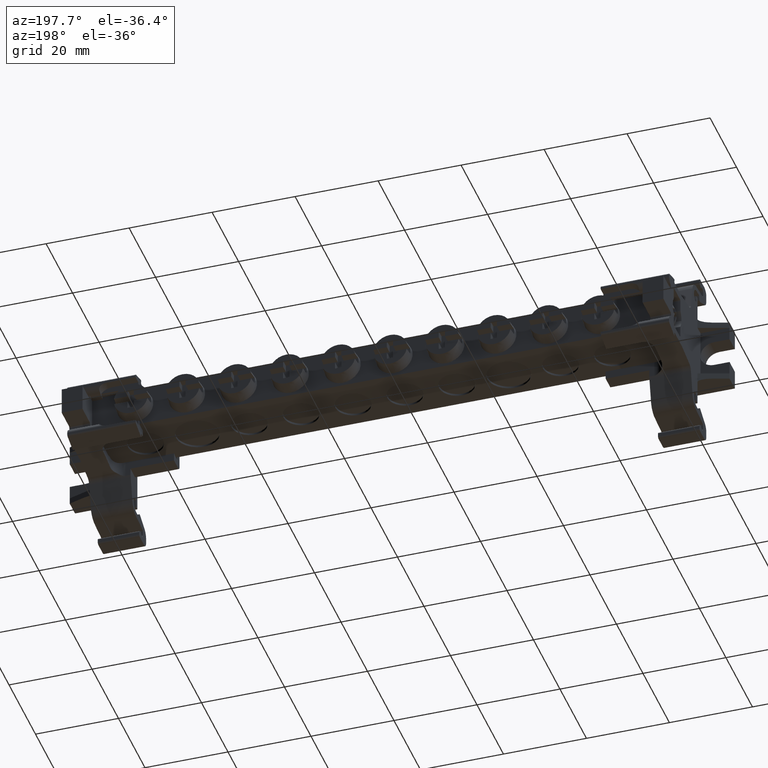
[diagram: clean part render]
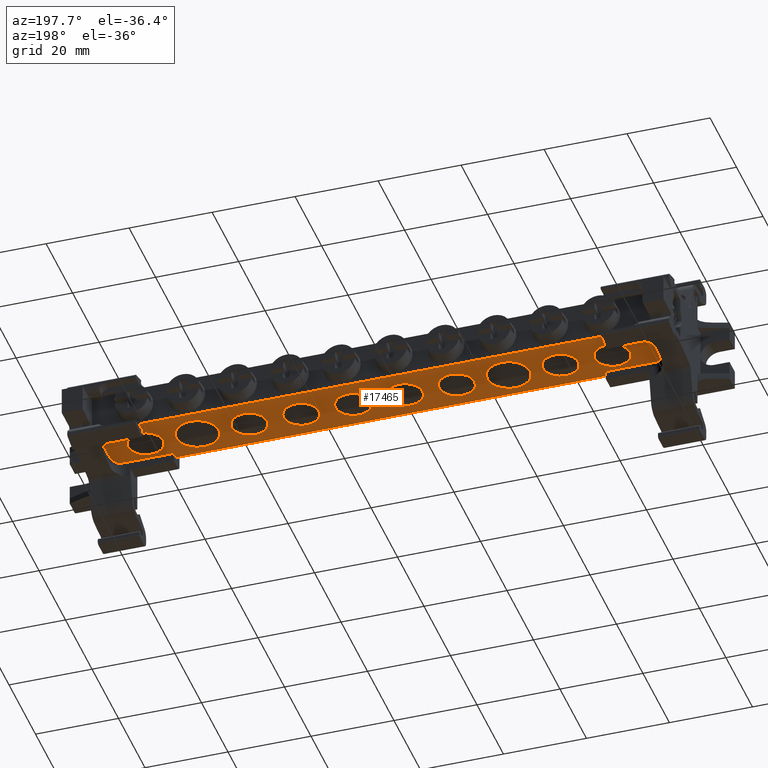
[diagram: same view with one face highlighted and labeled with its STEP entity id]
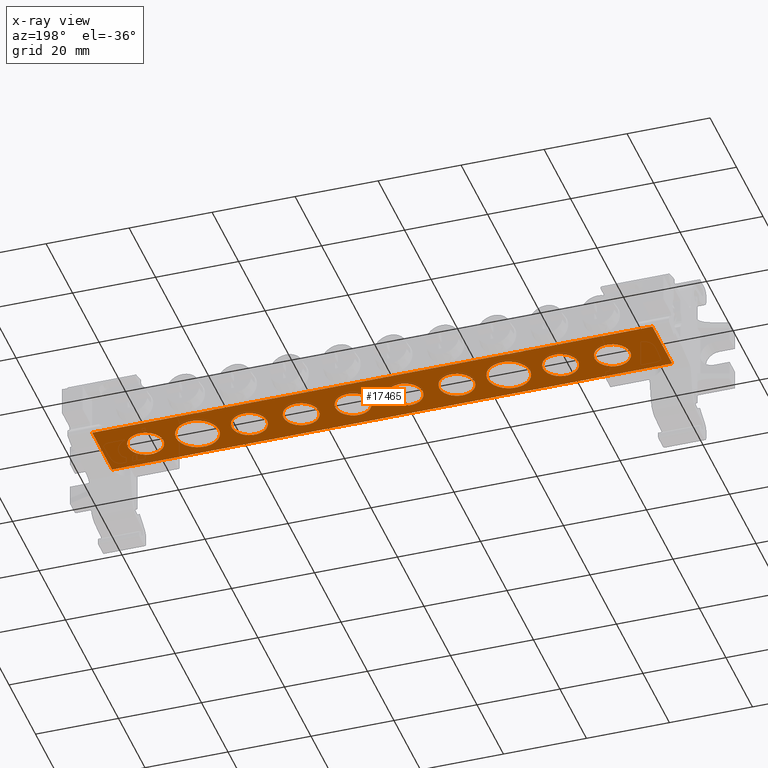
[diagram: x-ray of the same camera — body ghosted, the highlighted face saturated]
A machine part, auxiliary view. The second image highlights one B-rep face of the part: STEP entity #17465.
The next image is the same camera in x-ray: the body ghosted, the highlighted face saturated — about 0% of this face is hidden behind the body in this view.
In plain terms, the highlighted planar face has unit normal (0, 0, -1).
Its self-contained STEP definition (entity closure, byte-faithful):
#525 = DIRECTION ( 'NONE',  ( -0.0000000000000000000, -1.000000000000000000, -0.0000000000000000000 ) ) ;
#541 = CARTESIAN_POINT ( 'NONE',  ( 40.04730230417570200, 62.41882648292838800, 33.07764998369308500 ) ) ;
#555 = LINE ( 'NONE', #541, #10914 ) ;
#582 = CARTESIAN_POINT ( 'NONE',  ( -7.852697695824407000, 54.61882648292838400, 33.07764998369308500 ) ) ;
#583 = DIRECTION ( 'NONE',  ( 1.000000000000000000, 0.0000000000000000000, 0.0000000000000000000 ) ) ;
#587 = DIRECTION ( 'NONE',  ( 0.0000000000000000000, 0.0000000000000000000, 1.000000000000000000 ) ) ;
#620 = DIRECTION ( 'NONE',  ( -1.000000000000000000, 0.0000000000000000000, -0.0000000000000000000 ) ) ;
#626 = CARTESIAN_POINT ( 'NONE',  ( -56.95269769582441200, 47.41882648293140100, 33.07764998369308500 ) ) ;
#641 = LINE ( 'NONE', #626, #10921 ) ;
#652 = DIRECTION ( 'NONE',  ( 0.0000000000000000000, 0.0000000000000000000, 1.000000000000000000 ) ) ;
#654 = DIRECTION ( 'NONE',  ( 0.0000000000000000000, 0.0000000000000000000, 1.000000000000000000 ) ) ;
#656 = DIRECTION ( 'NONE',  ( 1.000000000000000000, 0.0000000000000000000, 0.0000000000000000000 ) ) ;
#657 = DIRECTION ( 'NONE',  ( 1.000000000000000000, 0.0000000000000000000, 0.0000000000000000000 ) ) ;
#660 = CARTESIAN_POINT ( 'NONE',  ( -20.35269769582440700, 54.61882648292838400, 33.07764998369308500 ) ) ;
#688 = CARTESIAN_POINT ( 'NONE',  ( 17.14730230417558900, 54.61882648292838400, 33.07764998369308500 ) ) ;
#712 = CARTESIAN_POINT ( 'NONE',  ( -82.85269769582440300, 54.61882648292838400, 33.07764998369308500 ) ) ;
#713 = DIRECTION ( 'NONE',  ( 0.0000000000000000000, 0.0000000000000000000, 1.000000000000000000 ) ) ;
#714 = DIRECTION ( 'NONE',  ( 1.000000000000000000, 0.0000000000000000000, 0.0000000000000000000 ) ) ;
#734 = DIRECTION ( 'NONE',  ( 1.000000000000000000, 0.0000000000000000000, 0.0000000000000000000 ) ) ;
#770 = CARTESIAN_POINT ( 'NONE',  ( -57.85269769582440300, 54.61882648292838400, 33.07764998369308500 ) ) ;
#771 = DIRECTION ( 'NONE',  ( 0.0000000000000000000, 0.0000000000000000000, 1.000000000000000000 ) ) ;
#773 = DIRECTION ( 'NONE',  ( 1.000000000000000000, 0.0000000000000000000, 0.0000000000000000000 ) ) ;
#776 = CARTESIAN_POINT ( 'NONE',  ( 4.647302304175593000, 54.61882648292838400, 33.07764998369308500 ) ) ;
#777 = DIRECTION ( 'NONE',  ( 0.0000000000000000000, 0.0000000000000000000, 1.000000000000000000 ) ) ;
#825 = DIRECTION ( 'NONE',  ( -1.000000000000000000, 0.0000000000000000000, -0.0000000000000000000 ) ) ;
#832 = LINE ( 'NONE', #853, #11047 ) ;
#844 = DIRECTION ( 'NONE',  ( 0.0000000000000000000, 0.0000000000000000000, 1.000000000000000000 ) ) ;
#845 = CARTESIAN_POINT ( 'NONE',  ( -32.85269769582441100, 54.61882648292838400, 33.07764998369308500 ) ) ;
#851 = DIRECTION ( 'NONE',  ( 1.000000000000000000, 0.0000000000000000000, 0.0000000000000000000 ) ) ;
#853 = CARTESIAN_POINT ( 'NONE',  ( -56.95269769582441200, 47.41882648293162100, 33.07764998369308500 ) ) ;
#873 = LINE ( 'NONE', #906, #11067 ) ;
#876 = DIRECTION ( 'NONE',  ( 1.000000000000000000, 0.0000000000000000000, 0.0000000000000000000 ) ) ;
#879 = DIRECTION ( 'NONE',  ( 1.000000000000000000, 0.0000000000000000000, 0.0000000000000000000 ) ) ;
#881 = DIRECTION ( 'NONE',  ( 0.0000000000000000000, 0.0000000000000000000, 1.000000000000000000 ) ) ;
#883 = DIRECTION ( 'NONE',  ( 0.0000000000000000000, 0.0000000000000000000, 1.000000000000000000 ) ) ;
#899 = DIRECTION ( 'NONE',  ( -0.0000000000000000000, -1.000000000000000000, -0.0000000000000000000 ) ) ;
#902 = CARTESIAN_POINT ( 'NONE',  ( -70.35269769582441800, 54.61882648292838400, 33.07764998369308500 ) ) ;
#905 = CARTESIAN_POINT ( 'NONE',  ( -45.35269769582441100, 54.61882648292838400, 33.07764998369308500 ) ) ;
#906 = CARTESIAN_POINT ( 'NONE',  ( 40.04730230417567300, 62.41882648292838800, 33.07764998369308500 ) ) ;
#913 = CARTESIAN_POINT ( 'NONE',  ( 29.64730230417559700, 54.61882648292838400, 33.07764998369308500 ) ) ;
#918 = DIRECTION ( 'NONE',  ( 0.0000000000000000000, 0.0000000000000000000, 1.000000000000000000 ) ) ;
#932 = DIRECTION ( 'NONE',  ( 1.000000000000000000, 0.0000000000000000000, 0.0000000000000000000 ) ) ;
#995 = LINE ( 'NONE', #1023, #10865 ) ;
#1004 = DIRECTION ( 'NONE',  ( 7.897574987183420400E-015, 1.000000000000000000, -0.0000000000000000000 ) ) ;
#1023 = CARTESIAN_POINT ( 'NONE',  ( 40.04730230417604300, 70.57882648293222900, 33.07764998369308500 ) ) ;
#2025 = VERTEX_POINT ( 'NONE', #4806 ) ;
#2032 = VERTEX_POINT ( 'NONE', #4838 ) ;
#2042 = VERTEX_POINT ( 'NONE', #4802 ) ;
#2043 = VERTEX_POINT ( 'NONE', #4877 ) ;
#2056 = VERTEX_POINT ( 'NONE', #4850 ) ;
#2076 = VERTEX_POINT ( 'NONE', #4901 ) ;
#2100 = VERTEX_POINT ( 'NONE', #4863 ) ;
#2122 = VERTEX_POINT ( 'NONE', #4841 ) ;
#2137 = VERTEX_POINT ( 'NONE', #4900 ) ;
#2140 = VERTEX_POINT ( 'NONE', #4861 ) ;
#2146 = VERTEX_POINT ( 'NONE', #4851 ) ;
#2151 = VERTEX_POINT ( 'NONE', #4869 ) ;
#2173 = VERTEX_POINT ( 'NONE', #4888 ) ;
#2175 = VERTEX_POINT ( 'NONE', #4882 ) ;
#2181 = VERTEX_POINT ( 'NONE', #4866 ) ;
#2199 = VERTEX_POINT ( 'NONE', #4843 ) ;
#2205 = VERTEX_POINT ( 'NONE', #4894 ) ;
#2229 = VERTEX_POINT ( 'NONE', #4957 ) ;
#2231 = VERTEX_POINT ( 'NONE', #4920 ) ;
#2239 = VERTEX_POINT ( 'NONE', #4960 ) ;
#4030 = CARTESIAN_POINT ( 'NONE',  ( 40.04730230417598600, 62.41882648292838800, 33.07764998369308500 ) ) ;
#4034 = CARTESIAN_POINT ( 'NONE',  ( -94.95269769582414200, 62.41882648292838800, 33.07764998369308500 ) ) ;
#4073 = CARTESIAN_POINT ( 'NONE',  ( 32.14730230417600900, 47.41882648293010800, 33.07764998369310000 ) ) ;
#4079 = CARTESIAN_POINT ( 'NONE',  ( -94.95269769582407100, 47.41882648293165700, 33.07764998369308500 ) ) ;
#4386 = EDGE_LOOP ( 'NONE', ( #13045, #13058 ) ) ;
#4405 = EDGE_LOOP ( 'NONE', ( #13079, #13040 ) ) ;
#4460 = EDGE_LOOP ( 'NONE', ( #13028, #13021, #12981, #13005, #13061, #13050, #13069, #13051, #13002, #13147 ) ) ;
#4802 = CARTESIAN_POINT ( 'NONE',  ( -49.60269769582441100, 54.61882648292838400, 33.07764998369308500 ) ) ;
#4806 = CARTESIAN_POINT ( 'NONE',  ( -37.10269769582441800, 54.61882648292838400, 33.07764998369308500 ) ) ;
#4838 = CARTESIAN_POINT ( 'NONE',  ( 33.89730230417558900, 54.61882648292838400, 33.07764998369308500 ) ) ;
#4841 = CARTESIAN_POINT ( 'NONE',  ( -41.10269769582440300, 54.61882648292838400, 33.07764998369308500 ) ) ;
#4843 = CARTESIAN_POINT ( 'NONE',  ( -66.10269769582441800, 54.61882648292838400, 33.07764998369308500 ) ) ;
#4850 = CARTESIAN_POINT ( 'NONE',  ( -52.70269769582440500, 54.61882648292838400, 33.07764998369308500 ) ) ;
#4851 = CARTESIAN_POINT ( 'NONE',  ( 25.39730230417559300, 54.61882648292838400, 33.07764998369308500 ) ) ;
#4861 = CARTESIAN_POINT ( 'NONE',  ( -63.00269769582440900, 54.61882648292838400, 33.07764998369308500 ) ) ;
#4863 = CARTESIAN_POINT ( 'NONE',  ( 11.99730230417559600, 54.61882648292838400, 33.07764998369308500 ) ) ;
#4866 = CARTESIAN_POINT ( 'NONE',  ( -78.60269769582440300, 54.61882648292838400, 33.07764998369308500 ) ) ;
#4869 = CARTESIAN_POINT ( 'NONE',  ( -12.10269769582441400, 54.61882648292838400, 33.07764998369308500 ) ) ;
#4877 = CARTESIAN_POINT ( 'NONE',  ( -16.10269769582440000, 54.61882648292838400, 33.07764998369308500 ) ) ;
#4882 = CARTESIAN_POINT ( 'NONE',  ( -28.60269769582440300, 54.61882648292838400, 33.07764998369308500 ) ) ;
#4888 = CARTESIAN_POINT ( 'NONE',  ( -87.10269769582440300, 54.61882648292838400, 33.07764998369308500 ) ) ;
#4894 = CARTESIAN_POINT ( 'NONE',  ( 8.897302304175598300, 54.61882648292838400, 33.07764998369308500 ) ) ;
#4900 = CARTESIAN_POINT ( 'NONE',  ( -3.602697695824400800, 54.61882648292838400, 33.07764998369308500 ) ) ;
#4901 = CARTESIAN_POINT ( 'NONE',  ( -74.60269769582441800, 54.61882648292838400, 33.07764998369308500 ) ) ;
#4920 = CARTESIAN_POINT ( 'NONE',  ( 0.3973023041755879300, 54.61882648292838400, 33.07764998369308500 ) ) ;
#4957 = CARTESIAN_POINT ( 'NONE',  ( 22.29730230417558400, 54.61882648292838400, 33.07764998369308500 ) ) ;
#4960 = CARTESIAN_POINT ( 'NONE',  ( -24.60269769582441400, 54.61882648292838400, 33.07764998369308500 ) ) ;
#5044 = CARTESIAN_POINT ( 'NONE',  ( 40.04730230417585100, 61.91882648292985900, 33.07764998369308500 ) ) ;
#5186 = CARTESIAN_POINT ( 'NONE',  ( -94.95269769582439800, 61.91882648293061900, 33.07764998369308500 ) ) ;
#5212 = CARTESIAN_POINT ( 'NONE',  ( 40.04730230417575100, 56.91882648293277200, 33.07764998369308500 ) ) ;
#5224 = CARTESIAN_POINT ( 'NONE',  ( -94.95269769582427000, 56.91882648293350400, 33.07764998369308500 ) ) ;
#5239 = CARTESIAN_POINT ( 'NONE',  ( 40.04730230417581500, 47.41882648293180600, 33.07764998369310000 ) ) ;
#5267 = CARTESIAN_POINT ( 'NONE',  ( -87.05269769582423600, 47.41882648293109500, 33.07764998369308500 ) ) ;
#6426 = VERTEX_POINT ( 'NONE', #5044 ) ;
#6514 = VERTEX_POINT ( 'NONE', #5186 ) ;
#6527 = VERTEX_POINT ( 'NONE', #5212 ) ;
#6539 = VERTEX_POINT ( 'NONE', #5224 ) ;
#6600 = VERTEX_POINT ( 'NONE', #5239 ) ;
#6622 = VERTEX_POINT ( 'NONE', #5267 ) ;
#6661 = VERTEX_POINT ( 'NONE', #4034 ) ;
#6664 = VERTEX_POINT ( 'NONE', #4079 ) ;
#6666 = VERTEX_POINT ( 'NONE', #4030 ) ;
#6673 = VERTEX_POINT ( 'NONE', #4073 ) ;
#7559 = EDGE_LOOP ( 'NONE', ( #12978, #13092 ) ) ;
#7579 = EDGE_LOOP ( 'NONE', ( #13001, #13085 ) ) ;
#7599 = EDGE_LOOP ( 'NONE', ( #12983, #13099 ) ) ;
#7606 = EDGE_LOOP ( 'NONE', ( #13013, #13024 ) ) ;
#7610 = EDGE_LOOP ( 'NONE', ( #12990, #13000 ) ) ;
#7624 = EDGE_LOOP ( 'NONE', ( #13044, #13084 ) ) ;
#7628 = EDGE_LOOP ( 'NONE', ( #13037, #12991 ) ) ;
#10865 = VECTOR ( 'NONE', #1004, 1000.000000000000000 ) ;
#10899 = CIRCLE ( 'NONE', #10934, 5.149999999999995000 ) ;
#10914 = VECTOR ( 'NONE', #525, 1000.000000000000000 ) ;
#10915 = CIRCLE ( 'NONE', #10916, 4.250000000000007100 ) ;
#10916 = AXIS2_PLACEMENT_3D ( 'NONE', #660, #654, #657 ) ;
#10921 = VECTOR ( 'NONE', #620, 1000.000000000000000 ) ;
#10923 = CIRCLE ( 'NONE', #10937, 4.250000000000006200 ) ;
#10934 = AXIS2_PLACEMENT_3D ( 'NONE', #688, #652, #656 ) ;
#10937 = AXIS2_PLACEMENT_3D ( 'NONE', #582, #587, #583 ) ;
#10971 = CIRCLE ( 'NONE', #10985, 5.150000000000002100 ) ;
#10972 = CIRCLE ( 'NONE', #11015, 4.250000000000003600 ) ;
#10983 = CIRCLE ( 'NONE', #11057, 4.250000000000007100 ) ;
#10985 = AXIS2_PLACEMENT_3D ( 'NONE', #770, #771, #773 ) ;
#10993 = CIRCLE ( 'NONE', #11020, 4.250000000000005300 ) ;
#11015 = AXIS2_PLACEMENT_3D ( 'NONE', #712, #713, #714 ) ;
#11020 = AXIS2_PLACEMENT_3D ( 'NONE', #776, #777, #734 ) ;
#11047 = VECTOR ( 'NONE', #825, 1000.000000000000000 ) ;
#11051 = CIRCLE ( 'NONE', #11076, 4.250000000000003600 ) ;
#11054 = CIRCLE ( 'NONE', #11065, 4.250000000000003600 ) ;
#11057 = AXIS2_PLACEMENT_3D ( 'NONE', #845, #844, #851 ) ;
#11065 = AXIS2_PLACEMENT_3D ( 'NONE', #902, #881, #879 ) ;
#11067 = VECTOR ( 'NONE', #899, 1000.000000000000000 ) ;
#11071 = CIRCLE ( 'NONE', #11072, 4.249999999999996400 ) ;
#11072 = AXIS2_PLACEMENT_3D ( 'NONE', #913, #918, #932 ) ;
#11076 = AXIS2_PLACEMENT_3D ( 'NONE', #905, #883, #876 ) ;
#11461 = DIRECTION ( 'NONE',  ( 0.0000000000000000000, 0.0000000000000000000, 1.000000000000000000 ) ) ;
#11466 = DIRECTION ( 'NONE',  ( 0.0000000000000000000, 0.0000000000000000000, 1.000000000000000000 ) ) ;
#11485 = CARTESIAN_POINT ( 'NONE',  ( -82.85269769582440300, 54.61882648292838400, 33.07764998369308500 ) ) ;
#11492 = CARTESIAN_POINT ( 'NONE',  ( 4.647302304175593000, 54.61882648292838400, 33.07764998369308500 ) ) ;
#11527 = DIRECTION ( 'NONE',  ( 1.000000000000000000, 0.0000000000000000000, 0.0000000000000000000 ) ) ;
#11529 = DIRECTION ( 'NONE',  ( 1.000000000000000000, 0.0000000000000000000, 0.0000000000000000000 ) ) ;
#11647 = DIRECTION ( 'NONE',  ( 0.0000000000000000000, 0.0000000000000000000, 1.000000000000000000 ) ) ;
#11698 = CARTESIAN_POINT ( 'NONE',  ( -20.35269769582440700, 54.61882648292838400, 33.07764998369308500 ) ) ;
#11702 = DIRECTION ( 'NONE',  ( 1.000000000000000000, 0.0000000000000000000, 0.0000000000000000000 ) ) ;
#11840 = CARTESIAN_POINT ( 'NONE',  ( -57.85269769582440300, 54.61882648292838400, 33.07764998369308500 ) ) ;
#11842 = DIRECTION ( 'NONE',  ( 1.000000000000000000, 0.0000000000000000000, 0.0000000000000000000 ) ) ;
#11871 = DIRECTION ( 'NONE',  ( 0.0000000000000000000, 0.0000000000000000000, 1.000000000000000000 ) ) ;
#11881 = AXIS2_PLACEMENT_3D ( 'NONE', #19451, #19421, #19429 ) ;
#11924 = DIRECTION ( 'NONE',  ( 1.000000000000000000, 0.0000000000000000000, 0.0000000000000000000 ) ) ;
#11962 = DIRECTION ( 'NONE',  ( 0.0000000000000000000, 0.0000000000000000000, 1.000000000000000000 ) ) ;
#11988 = CARTESIAN_POINT ( 'NONE',  ( -70.35269769582441800, 54.61882648292838400, 33.07764998369308500 ) ) ;
#12106 = CARTESIAN_POINT ( 'NONE',  ( 29.64730230417559700, 54.61882648292838400, 33.07764998369308500 ) ) ;
#12107 = DIRECTION ( 'NONE',  ( 0.0000000000000000000, 0.0000000000000000000, 1.000000000000000000 ) ) ;
#12161 = DIRECTION ( 'NONE',  ( 1.000000000000000000, 0.0000000000000000000, 0.0000000000000000000 ) ) ;
#12317 = DIRECTION ( 'NONE',  ( -1.000000000000000000, -0.0000000000000000000, 0.0000000000000000000 ) ) ;
#12326 = LINE ( 'NONE', #12346, #18634 ) ;
#12346 = CARTESIAN_POINT ( 'NONE',  ( -56.95269769582441200, 47.41882648292838800, 33.07764998369310000 ) ) ;
#12354 = LINE ( 'NONE', #12389, #18600 ) ;
#12355 = CARTESIAN_POINT ( 'NONE',  ( -94.95269769582407100, 62.41882648292838800, 33.07764998369308500 ) ) ;
#12369 = LINE ( 'NONE', #12355, #18608 ) ;
#12380 = DIRECTION ( 'NONE',  ( 0.0000000000000000000, 1.000000000000000000, 0.0000000000000000000 ) ) ;
#12389 = CARTESIAN_POINT ( 'NONE',  ( -94.95269769582432700, 62.41882648292838800, 33.07764998369308500 ) ) ;
#12392 = DIRECTION ( 'NONE',  ( 0.0000000000000000000, 1.000000000000000000, 0.0000000000000000000 ) ) ;
#12398 = LINE ( 'NONE', #12435, #18604 ) ;
#12412 = DIRECTION ( 'NONE',  ( 1.000000000000000000, 0.0000000000000000000, 0.0000000000000000000 ) ) ;
#12435 = CARTESIAN_POINT ( 'NONE',  ( -2.841710223138088400, 62.41882648292838800, 33.07764998369308500 ) ) ;
#12494 = DIRECTION ( 'NONE',  ( 0.0000000000000000000, 1.000000000000000000, 0.0000000000000000000 ) ) ;
#12500 = LINE ( 'NONE', #12517, #18645 ) ;
#12517 = CARTESIAN_POINT ( 'NONE',  ( -94.95269769582441200, 62.41882648292838800, 33.07764998369308500 ) ) ;
#12570 = DIRECTION ( 'NONE',  ( 1.000000000000000000, 0.0000000000000000000, 0.0000000000000000000 ) ) ;
#12575 = CARTESIAN_POINT ( 'NONE',  ( -7.852697695824407000, 54.61882648292838400, 33.07764998369308500 ) ) ;
#12576 = DIRECTION ( 'NONE',  ( 0.0000000000000000000, 0.0000000000000000000, 1.000000000000000000 ) ) ;
#12578 = DIRECTION ( 'NONE',  ( 1.000000000000000000, 0.0000000000000000000, 0.0000000000000000000 ) ) ;
#12585 = DIRECTION ( 'NONE',  ( 0.0000000000000000000, 0.0000000000000000000, 1.000000000000000000 ) ) ;
#12589 = DIRECTION ( 'NONE',  ( 0.0000000000000000000, 0.0000000000000000000, 1.000000000000000000 ) ) ;
#12595 = DIRECTION ( 'NONE',  ( 1.000000000000000000, 0.0000000000000000000, 0.0000000000000000000 ) ) ;
#12602 = CARTESIAN_POINT ( 'NONE',  ( -32.85269769582441100, 54.61882648292838400, 33.07764998369308500 ) ) ;
#12611 = CARTESIAN_POINT ( 'NONE',  ( -45.35269769582441100, 54.61882648292838400, 33.07764998369308500 ) ) ;
#12620 = DIRECTION ( 'NONE',  ( 0.0000000000000000000, 0.0000000000000000000, 1.000000000000000000 ) ) ;
#12622 = DIRECTION ( 'NONE',  ( 1.000000000000000000, 0.0000000000000000000, 0.0000000000000000000 ) ) ;
#12630 = CARTESIAN_POINT ( 'NONE',  ( 17.14730230417558900, 54.61882648292838400, 33.07764998369308500 ) ) ;
#12658 = EDGE_LOOP ( 'NONE', ( #13083, #13074 ) ) ;
#12978 = ORIENTED_EDGE ( 'NONE', *, *, #14133, .T. ) ;
#12981 = ORIENTED_EDGE ( 'NONE', *, *, #14247, .T. ) ;
#12983 = ORIENTED_EDGE ( 'NONE', *, *, #14164, .T. ) ;
#12990 = ORIENTED_EDGE ( 'NONE', *, *, #14120, .T. ) ;
#12991 = ORIENTED_EDGE ( 'NONE', *, *, #14327, .T. ) ;
#13000 = ORIENTED_EDGE ( 'NONE', *, *, #14371, .T. ) ;
#13001 = ORIENTED_EDGE ( 'NONE', *, *, #14097, .T. ) ;
#13002 = ORIENTED_EDGE ( 'NONE', *, *, #14210, .F. ) ;
#13005 = ORIENTED_EDGE ( 'NONE', *, *, #14083, .T. ) ;
#13013 = ORIENTED_EDGE ( 'NONE', *, *, #14131, .T. ) ;
#13021 = ORIENTED_EDGE ( 'NONE', *, *, #14158, .T. ) ;
#13024 = ORIENTED_EDGE ( 'NONE', *, *, #14434, .T. ) ;
#13028 = ORIENTED_EDGE ( 'NONE', *, *, #14173, .T. ) ;
#13037 = ORIENTED_EDGE ( 'NONE', *, *, #14169, .T. ) ;
#13040 = ORIENTED_EDGE ( 'NONE', *, *, #14329, .T. ) ;
#13044 = ORIENTED_EDGE ( 'NONE', *, *, #14156, .T. ) ;
#13045 = ORIENTED_EDGE ( 'NONE', *, *, #14187, .T. ) ;
#13050 = ORIENTED_EDGE ( 'NONE', *, *, #14261, .T. ) ;
#13051 = ORIENTED_EDGE ( 'NONE', *, *, #14265, .T. ) ;
#13058 = ORIENTED_EDGE ( 'NONE', *, *, #14491, .T. ) ;
#13061 = ORIENTED_EDGE ( 'NONE', *, *, #14251, .T. ) ;
#13069 = ORIENTED_EDGE ( 'NONE', *, *, #14299, .T. ) ;
#13074 = ORIENTED_EDGE ( 'NONE', *, *, #14339, .T. ) ;
#13079 = ORIENTED_EDGE ( 'NONE', *, *, #14066, .T. ) ;
#13083 = ORIENTED_EDGE ( 'NONE', *, *, #14103, .T. ) ;
#13084 = ORIENTED_EDGE ( 'NONE', *, *, #14321, .T. ) ;
#13085 = ORIENTED_EDGE ( 'NONE', *, *, #14397, .T. ) ;
#13092 = ORIENTED_EDGE ( 'NONE', *, *, #14364, .T. ) ;
#13099 = ORIENTED_EDGE ( 'NONE', *, *, #14442, .T. ) ;
#13147 = ORIENTED_EDGE ( 'NONE', *, *, #14064, .T. ) ;
#14064 = EDGE_CURVE ( 'NONE', #6426, #6527, #555, .T. ) ;
#14066 = EDGE_CURVE ( 'NONE', #2137, #2151, #10923, .T. ) ;
#14083 = EDGE_CURVE ( 'NONE', #6622, #6664, #641, .T. ) ;
#14097 = EDGE_CURVE ( 'NONE', #2043, #2239, #10915, .T. ) ;
#14103 = EDGE_CURVE ( 'NONE', #2229, #2100, #10899, .T. ) ;
#14120 = EDGE_CURVE ( 'NONE', #2181, #2173, #10972, .T. ) ;
#14131 = EDGE_CURVE ( 'NONE', #2056, #2140, #10971, .T. ) ;
#14133 = EDGE_CURVE ( 'NONE', #2205, #2231, #10993, .T. ) ;
#14156 = EDGE_CURVE ( 'NONE', #2175, #2025, #10983, .T. ) ;
#14158 = EDGE_CURVE ( 'NONE', #6600, #6673, #832, .T. ) ;
#14164 = EDGE_CURVE ( 'NONE', #2199, #2076, #11054, .T. ) ;
#14169 = EDGE_CURVE ( 'NONE', #2122, #2042, #11051, .T. ) ;
#14173 = EDGE_CURVE ( 'NONE', #6527, #6600, #873, .T. ) ;
#14187 = EDGE_CURVE ( 'NONE', #2032, #2146, #11071, .T. ) ;
#14210 = EDGE_CURVE ( 'NONE', #6426, #6666, #995, .T. ) ;
#14247 = EDGE_CURVE ( 'NONE', #6673, #6622, #12326, .T. ) ;
#14251 = EDGE_CURVE ( 'NONE', #6664, #6539, #12369, .T. ) ;
#14261 = EDGE_CURVE ( 'NONE', #6539, #6514, #12354, .T. ) ;
#14265 = EDGE_CURVE ( 'NONE', #6661, #6666, #12398, .T. ) ;
#14299 = EDGE_CURVE ( 'NONE', #6514, #6661, #12500, .T. ) ;
#14321 = EDGE_CURVE ( 'NONE', #2025, #2175, #18678, .T. ) ;
#14327 = EDGE_CURVE ( 'NONE', #2042, #2122, #16225, .T. ) ;
#14329 = EDGE_CURVE ( 'NONE', #2151, #2137, #16228, .T. ) ;
#14339 = EDGE_CURVE ( 'NONE', #2100, #2229, #16233, .T. ) ;
#14364 = EDGE_CURVE ( 'NONE', #2231, #2205, #19907, .T. ) ;
#14371 = EDGE_CURVE ( 'NONE', #2173, #2181, #19896, .T. ) ;
#14397 = EDGE_CURVE ( 'NONE', #2239, #2043, #15366, .T. ) ;
#14434 = EDGE_CURVE ( 'NONE', #2140, #2056, #15428, .T. ) ;
#14442 = EDGE_CURVE ( 'NONE', #2076, #2199, #15458, .T. ) ;
#14491 = EDGE_CURVE ( 'NONE', #2146, #2032, #15533, .T. ) ;
#15366 = CIRCLE ( 'NONE', #15394, 4.250000000000007100 ) ;
#15394 = AXIS2_PLACEMENT_3D ( 'NONE', #11698, #11647, #11702 ) ;
#15416 = AXIS2_PLACEMENT_3D ( 'NONE', #11988, #11962, #11924 ) ;
#15428 = CIRCLE ( 'NONE', #15449, 5.150000000000002100 ) ;
#15449 = AXIS2_PLACEMENT_3D ( 'NONE', #11840, #11871, #11842 ) ;
#15458 = CIRCLE ( 'NONE', #15416, 4.250000000000003600 ) ;
#15502 = AXIS2_PLACEMENT_3D ( 'NONE', #12106, #12107, #12161 ) ;
#15533 = CIRCLE ( 'NONE', #15502, 4.249999999999996400 ) ;
#16225 = CIRCLE ( 'NONE', #16248, 4.250000000000003600 ) ;
#16228 = CIRCLE ( 'NONE', #16229, 4.250000000000006200 ) ;
#16229 = AXIS2_PLACEMENT_3D ( 'NONE', #12575, #12576, #12595 ) ;
#16233 = CIRCLE ( 'NONE', #16244, 5.149999999999995000 ) ;
#16244 = AXIS2_PLACEMENT_3D ( 'NONE', #12630, #12620, #12622 ) ;
#16248 = AXIS2_PLACEMENT_3D ( 'NONE', #12611, #12589, #12578 ) ;
#17465 = ADVANCED_FACE ( 'NONE', ( #19427, #19418, #19428, #19409, #19438, #19445, #19419, #19446, #19448, #19434, #19437 ), #19420, .T. ) ;
#18600 = VECTOR ( 'NONE', #12380, 1000.000000000000000 ) ;
#18604 = VECTOR ( 'NONE', #12412, 1000.000000000000000 ) ;
#18608 = VECTOR ( 'NONE', #12392, 1000.000000000000000 ) ;
#18634 = VECTOR ( 'NONE', #12317, 1000.000000000000000 ) ;
#18645 = VECTOR ( 'NONE', #12494, 1000.000000000000000 ) ;
#18678 = CIRCLE ( 'NONE', #18710, 4.250000000000007100 ) ;
#18710 = AXIS2_PLACEMENT_3D ( 'NONE', #12602, #12585, #12570 ) ;
#19409 = FACE_BOUND ( 'NONE', #7610, .T. ) ;
#19418 = FACE_BOUND ( 'NONE', #7624, .T. ) ;
#19419 = FACE_BOUND ( 'NONE', #7559, .T. ) ;
#19420 = PLANE ( 'NONE',  #11881 ) ;
#19421 = DIRECTION ( 'NONE',  ( 0.0000000000000000000, 0.0000000000000000000, -1.000000000000000000 ) ) ;
#19427 = FACE_BOUND ( 'NONE', #7628, .T. ) ;
#19428 = FACE_BOUND ( 'NONE', #7579, .T. ) ;
#19429 = DIRECTION ( 'NONE',  ( -1.000000000000000000, 0.0000000000000000000, -0.0000000000000000000 ) ) ;
#19434 = FACE_OUTER_BOUND ( 'NONE', #4460, .T. ) ;
#19437 = FACE_BOUND ( 'NONE', #4405, .T. ) ;
#19438 = FACE_BOUND ( 'NONE', #7599, .T. ) ;
#19445 = FACE_BOUND ( 'NONE', #7606, .T. ) ;
#19446 = FACE_BOUND ( 'NONE', #12658, .T. ) ;
#19448 = FACE_BOUND ( 'NONE', #4386, .T. ) ;
#19451 = CARTESIAN_POINT ( 'NONE',  ( -56.95269769582441200, 62.41882648292838800, 33.07764998369308500 ) ) ;
#19889 = AXIS2_PLACEMENT_3D ( 'NONE', #11485, #11461, #11527 ) ;
#19896 = CIRCLE ( 'NONE', #19889, 4.250000000000003600 ) ;
#19907 = CIRCLE ( 'NONE', #19915, 4.250000000000005300 ) ;
#19915 = AXIS2_PLACEMENT_3D ( 'NONE', #11492, #11466, #11529 ) ;